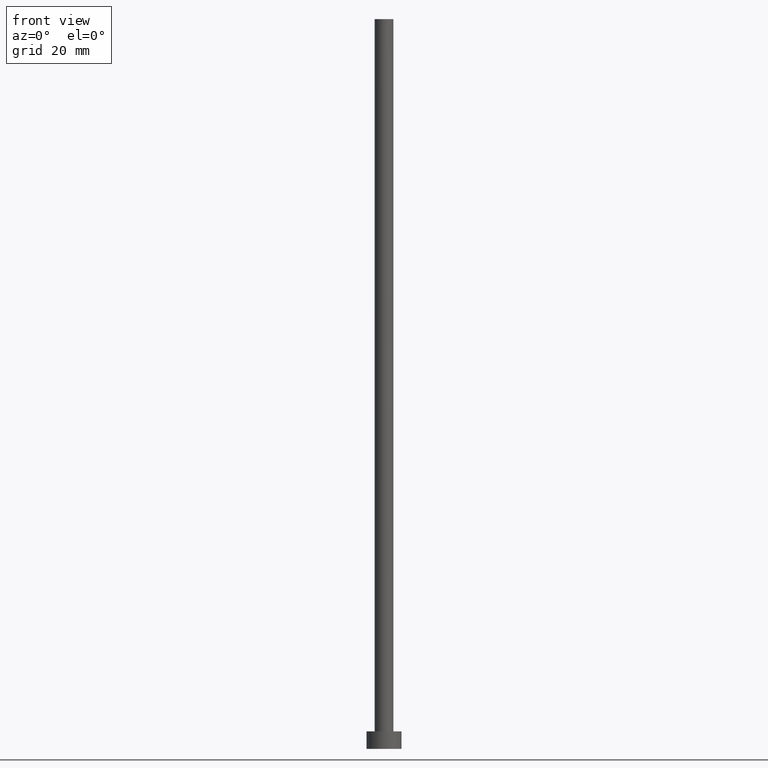
[diagram: clean part render]
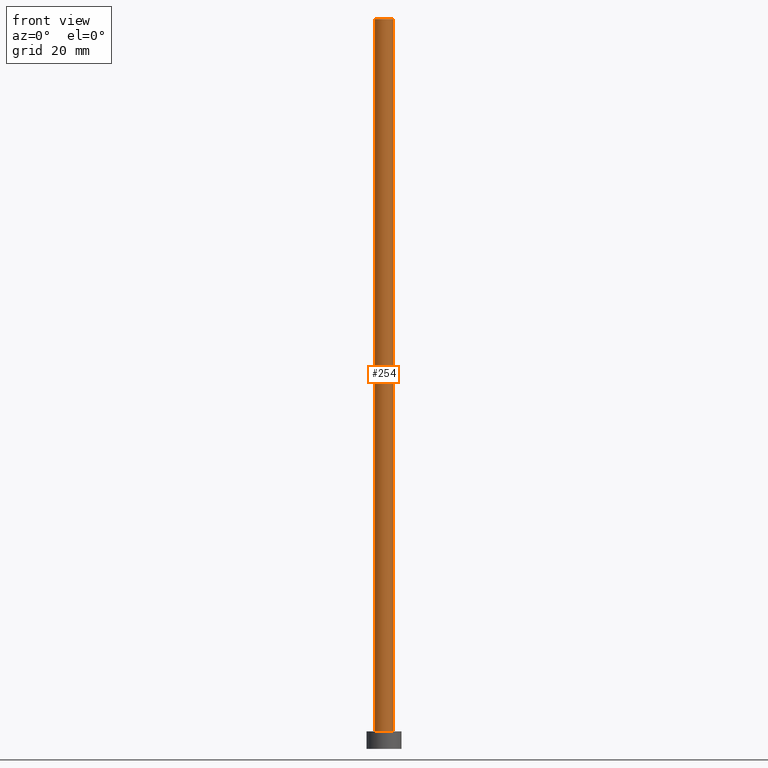
[diagram: same view with one face highlighted and labeled with its STEP entity id]
A machine part, front view. The second image highlights one B-rep face of the part: STEP entity #254.
In plain terms, the highlighted cylindrical surface (edge-blend (fillet) strip) has radius 1.6 mm, axis along (-0, -0, -1).
Its self-contained STEP definition (entity closure, byte-faithful):
#8 = VERTEX_POINT ( 'NONE', #9 ) ;
#9 = CARTESIAN_POINT ( 'NONE',  ( -1.600000000000000089, 0.000000000000000000, 3.000000000000000000 ) ) ;
#15 = DIRECTION ( 'NONE',  ( -0.000000000000000000, -0.000000000000000000, -1.000000000000000000 ) ) ;
#20 = CARTESIAN_POINT ( 'NONE',  ( 0.000000000000000000, 0.000000000000000000, 125.0000000000000000 ) ) ;
#29 = LINE ( 'NONE', #148, #46 ) ;
#31 = AXIS2_PLACEMENT_3D ( 'NONE', #20, #15, #95 ) ;
#33 = EDGE_CURVE ( 'NONE', #144, #229, #29, .T. ) ;
#46 = VECTOR ( 'NONE', #231, 1000.000000000000000 ) ;
#49 = CARTESIAN_POINT ( 'NONE',  ( 0.000000000000000000, 0.000000000000000000, 3.000000000000000000 ) ) ;
#53 = CARTESIAN_POINT ( 'NONE',  ( -1.600000000000000089, 0.000000000000000000, 125.0000000000000000 ) ) ;
#62 = CIRCLE ( 'NONE', #189, 1.600000000000000089 ) ;
#68 = EDGE_CURVE ( 'NONE', #8, #229, #62, .T. ) ;
#71 = DIRECTION ( 'NONE',  ( -0.000000000000000000, -0.000000000000000000, -1.000000000000000000 ) ) ;
#80 = EDGE_CURVE ( 'NONE', #139, #144, #160, .T. ) ;
#95 = DIRECTION ( 'NONE',  ( -1.000000000000000000, 0.000000000000000000, 0.000000000000000000 ) ) ;
#106 = EDGE_CURVE ( 'NONE', #139, #8, #236, .T. ) ;
#116 = CYLINDRICAL_SURFACE ( 'NONE', #31, 1.600000000000000089 ) ;
#126 = CARTESIAN_POINT ( 'NONE',  ( 0.000000000000000000, 0.000000000000000000, 125.0000000000000000 ) ) ;
#139 = VERTEX_POINT ( 'NONE', #53 ) ;
#144 = VERTEX_POINT ( 'NONE', #153 ) ;
#148 = CARTESIAN_POINT ( 'NONE',  ( 1.600000000000000089, 1.959434878635764737E-16, 125.0000000000000000 ) ) ;
#153 = CARTESIAN_POINT ( 'NONE',  ( 1.600000000000000089, 1.959434878635764737E-16, 125.0000000000000000 ) ) ;
#156 = ORIENTED_EDGE ( 'NONE', *, *, #33, .F. ) ;
#160 = CIRCLE ( 'NONE', #212, 1.600000000000000089 ) ;
#161 = VECTOR ( 'NONE', #71, 1000.000000000000000 ) ;
#163 = ORIENTED_EDGE ( 'NONE', *, *, #68, .T. ) ;
#175 = EDGE_LOOP ( 'NONE', ( #156, #240, #179, #163 ) ) ;
#179 = ORIENTED_EDGE ( 'NONE', *, *, #106, .T. ) ;
#181 = DIRECTION ( 'NONE',  ( 1.000000000000000000, 0.000000000000000000, 0.000000000000000000 ) ) ;
#189 = AXIS2_PLACEMENT_3D ( 'NONE', #49, #234, #181 ) ;
#205 = DIRECTION ( 'NONE',  ( 0.000000000000000000, 0.000000000000000000, 1.000000000000000000 ) ) ;
#212 = AXIS2_PLACEMENT_3D ( 'NONE', #126, #205, #246 ) ;
#214 = CARTESIAN_POINT ( 'NONE',  ( 1.600000000000000089, 1.959434878635764737E-16, 3.000000000000000000 ) ) ;
#229 = VERTEX_POINT ( 'NONE', #214 ) ;
#231 = DIRECTION ( 'NONE',  ( -0.000000000000000000, -0.000000000000000000, -1.000000000000000000 ) ) ;
#234 = DIRECTION ( 'NONE',  ( 0.000000000000000000, 0.000000000000000000, 1.000000000000000000 ) ) ;
#236 = LINE ( 'NONE', #250, #161 ) ;
#240 = ORIENTED_EDGE ( 'NONE', *, *, #80, .F. ) ;
#246 = DIRECTION ( 'NONE',  ( 1.000000000000000000, 0.000000000000000000, 0.000000000000000000 ) ) ;
#250 = CARTESIAN_POINT ( 'NONE',  ( -1.600000000000000089, 0.000000000000000000, 125.0000000000000000 ) ) ;
#253 = FACE_OUTER_BOUND ( 'NONE', #175, .T. ) ;
#254 = ADVANCED_FACE ( 'NONE', ( #253 ), #116, .T. ) ;